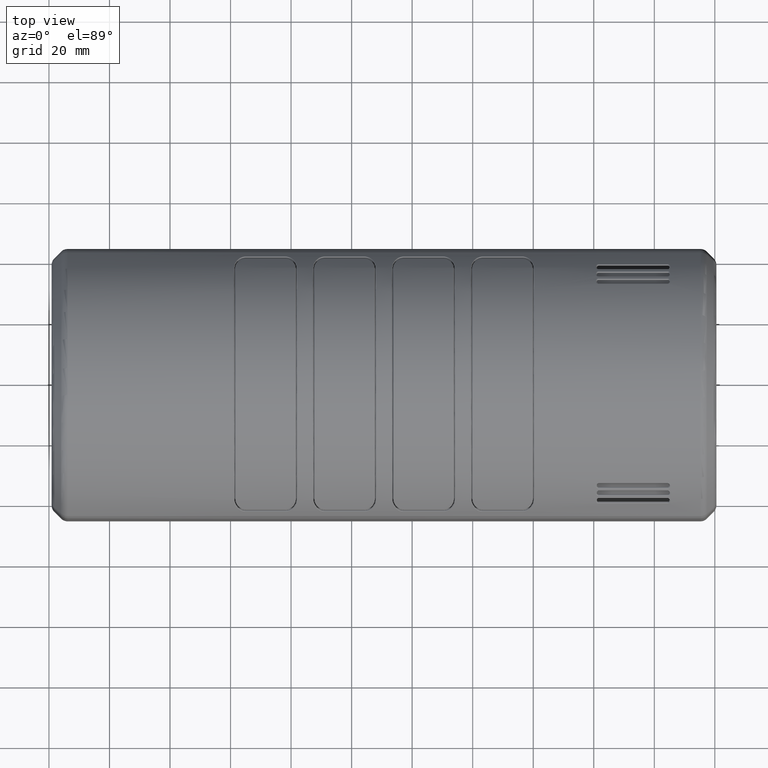
[diagram: clean part render]
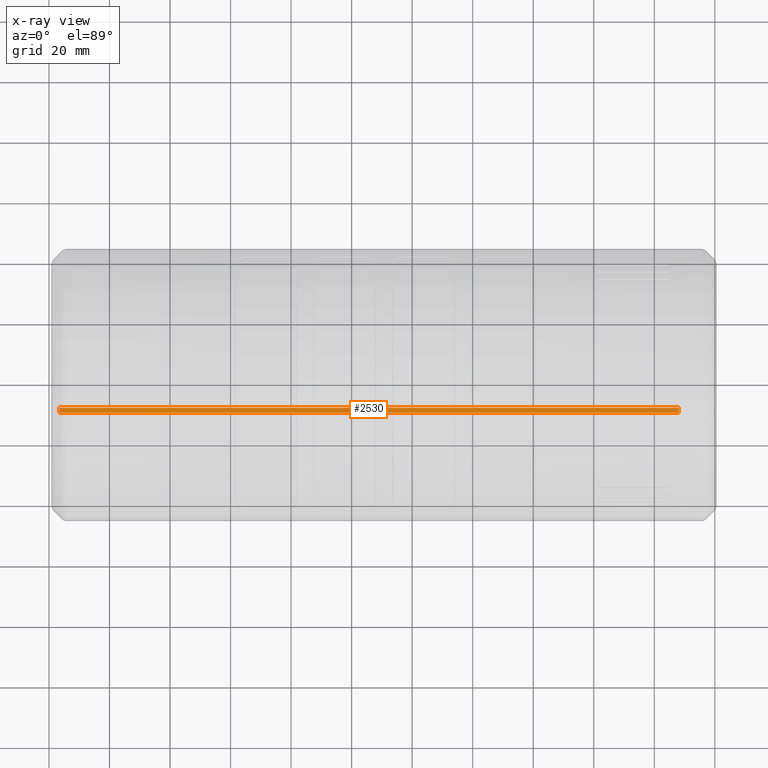
[diagram: x-ray — body ghosted, one internal face saturated and labeled with its STEP entity id]
A machine part, top view, then the same camera in x-ray: the body is ghosted and one INTERNAL B-rep face — a face not visible from any outside direction — is saturated and labeled: STEP entity #2530.
In plain terms, the highlighted face is a SurfaceOfExtrusion surface.
Its self-contained STEP definition (entity closure, byte-faithful):
#230=SURFACE_OF_LINEAR_EXTRUSION('',#1702,#14516);
#1700=B_SPLINE_CURVE_WITH_KNOTS('',3,(#41390,#41391,#41392,#41393),.UNSPECIFIED.,
 .F.,.F.,(4,4),(0.,1.),.UNSPECIFIED.);
#1701=B_SPLINE_CURVE_WITH_KNOTS('',3,(#41397,#41398,#41399,#41400),.UNSPECIFIED.,
 .F.,.F.,(4,4),(0.,1.),.UNSPECIFIED.);
#1702=B_SPLINE_CURVE_WITH_KNOTS('',3,(#41401,#41402,#41403,#41404,#41405,
#41406,#41407,#41408,#41409,#41410,#41411,#41412,#41413,#41414,#41415,#41416,
#41417,#41418,#41419,#41420,#41421,#41422,#41423,#41424,#41425,#41426,#41427,
#41428,#41429,#41430,#41431,#41432),.UNSPECIFIED.,.F.,.F.,(4,2,2,2,2,2,2,
2,2,2,2,2,2,2,2,4),(0.,0.125,0.15625,0.187500000000001,0.250000000000001,
0.312500000000001,0.343750000000001,0.375000000000001,0.437500000000001,
0.500000000000001,0.625000000000001,0.687500000000001,0.750000000000001,
0.8125,0.875,1.),.UNSPECIFIED.);
#2530=ADVANCED_FACE('',(#3745),#230,.T.);
#3745=FACE_OUTER_BOUND('',#4620,.F.);
#4620=EDGE_LOOP('',(#8916,#8917,#8918,#8919));
#8916=ORIENTED_EDGE('',*,*,#12447,.T.);
#8917=ORIENTED_EDGE('',*,*,#12448,.F.);
#8918=ORIENTED_EDGE('',*,*,#12449,.T.);
#8919=ORIENTED_EDGE('',*,*,#12450,.F.);
#10296=VERTEX_POINT('',#41388);
#10297=VERTEX_POINT('',#41389);
#10298=VERTEX_POINT('',#41394);
#10299=VERTEX_POINT('',#41396);
#12447=EDGE_CURVE('',#10296,#10297,#13475,.T.);
#12448=EDGE_CURVE('',#10298,#10297,#1700,.T.);
#12449=EDGE_CURVE('',#10298,#10299,#13476,.T.);
#12450=EDGE_CURVE('',#10296,#10299,#1701,.T.);
#13475=LINE('',#41387,#14514);
#13476=LINE('',#41395,#14515);
#14514=VECTOR('',#19034,1.);
#14515=VECTOR('',#19035,1.);
#14516=VECTOR('',#19036,1.);
#19034=DIRECTION('',(1.,0.,0.));
#19035=DIRECTION('',(-1.,0.,0.));
#19036=DIRECTION('',(1.,0.,0.));
#41387=CARTESIAN_POINT('',(35.6500000000027,-9.44541163935276,23.3737133570193));
#41388=CARTESIAN_POINT('',(-56.5999999999968,-9.44541163935242,23.3737133570194));
#41389=CARTESIAN_POINT('',(148.000000000002,-9.4454116393527,23.3737133570193));
#41390=CARTESIAN_POINT('',(148.000000000003,-7.91089655699401,23.8695464821729));
#41391=CARTESIAN_POINT('',(148.000000000003,-8.42659290735129,23.7189948971217));
#41392=CARTESIAN_POINT('',(148.000000000003,-8.93857317819629,23.5535672200296));
#41393=CARTESIAN_POINT('',(148.000000000003,-9.44541163935273,23.3737133570193));
#41394=CARTESIAN_POINT('',(148.000000000003,-7.91089655699412,23.8695464821729));
#41395=CARTESIAN_POINT('',(35.6500000000022,-7.91089655699404,23.8695464821729));
#41396=CARTESIAN_POINT('',(-56.5999999999973,-7.91089655699397,23.8695464821729));
#41397=CARTESIAN_POINT('',(-56.5999999999975,-9.44541163935219,23.3737133570195));
#41398=CARTESIAN_POINT('',(-56.5999999999975,-8.93857317819585,23.5535672200297));
#41399=CARTESIAN_POINT('',(-56.5999999999974,-8.42659290735102,23.7189948971218));
#41400=CARTESIAN_POINT('',(-56.5999999999974,-7.91089655699391,23.8695464821729));
#41401=CARTESIAN_POINT('',(-1645.28811970385,-22.2474426759545,14.1582161199375));
#41402=CARTESIAN_POINT('',(-1645.28811970385,-20.9389227529377,15.8304747193389));
#41403=CARTESIAN_POINT('',(-1645.28811970385,-19.4535000736135,17.3466144144009));
#41404=CARTESIAN_POINT('',(-1645.28811970385,-17.3652852444846,19.0375434328103));
#41405=CARTESIAN_POINT('',(-1645.28811970385,-16.93688864294,19.3645972950646));
#41406=CARTESIAN_POINT('',(-1645.28811970385,-16.068060110535,19.9898423201255));
#41407=CARTESIAN_POINT('',(-1645.28811970385,-15.6263561500012,20.2890832420629));
#41408=CARTESIAN_POINT('',(-1645.28811970385,-14.2797062060715,21.1472688861343));
#41409=CARTESIAN_POINT('',(-1645.28811970385,-13.3533273191972,21.6668695251661));
#41410=CARTESIAN_POINT('',(-1645.28811970385,-11.4429360072624,22.6002737180066));
#41411=CARTESIAN_POINT('',(-1645.28811970385,-10.4589177422574,23.0140665515103));
#41412=CARTESIAN_POINT('',(-1645.28811970385,-8.93864789622331,23.5535405537609));
#41413=CARTESIAN_POINT('',(-1645.28811970385,-8.42586046330085,23.7192088490113));
#41414=CARTESIAN_POINT('',(-1645.28811970385,-7.39592067344285,24.019887611951));
#41415=CARTESIAN_POINT('',(-1645.28811970385,-6.87765149072065,24.1553034701043));
#41416=CARTESIAN_POINT('',(-1645.28811970385,-5.31293042031043,24.5167096455609));
#41417=CARTESIAN_POINT('',(-1645.28811970385,-4.25661408189862,24.6980805269096));
#41418=CARTESIAN_POINT('',(-1645.28811970385,-2.11750829450957,24.9410776333167));
#41419=CARTESIAN_POINT('',(-1645.28811970385,-1.04734343425042,25.0010184374416));
#41420=CARTESIAN_POINT('',(-1645.28811970385,2.14518123641747,24.9992759024178));
#41421=CARTESIAN_POINT('',(-1645.28811970385,4.25842741074096,24.7607215722352));
#41422=CARTESIAN_POINT('',(-1645.28811970385,7.40485034246508,24.0343697329224));
#41423=CARTESIAN_POINT('',(-1645.28811970385,8.43290228785791,23.7335643492585));
#41424=CARTESIAN_POINT('',(-1645.28811970385,10.4387835286029,23.0228942157206));
#41425=CARTESIAN_POINT('',(-1645.28811970385,11.4184166778739,22.6125929726823));
#41426=CARTESIAN_POINT('',(-1645.28811970385,13.330609870353,21.6809776429503));
#41427=CARTESIAN_POINT('',(-1645.28811970385,14.2631725967366,21.1596698840085));
#41428=CARTESIAN_POINT('',(-1645.28811970385,16.0799809979319,20.0031079168533));
#41429=CARTESIAN_POINT('',(-1645.28811970385,16.9483444211173,19.3778284211684));
#41430=CARTESIAN_POINT('',(-1645.28811970385,19.4290358127409,17.3697473854948));
#41431=CARTESIAN_POINT('',(-1645.28811970385,20.9227001272749,15.8551026188165));
#41432=CARTESIAN_POINT('',(-1645.28811970385,22.2504874524079,14.1582198838064));